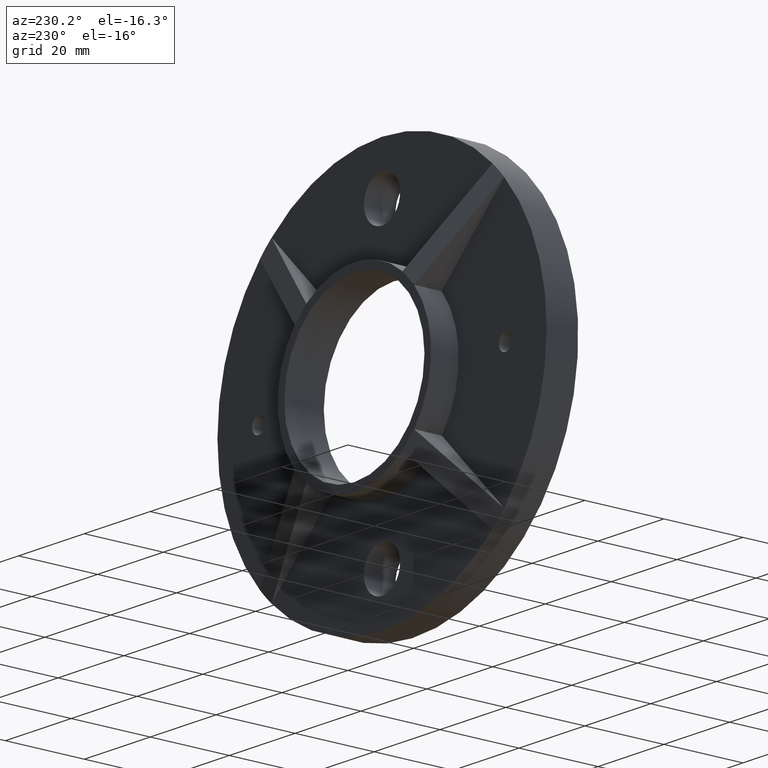
[diagram: clean part render]
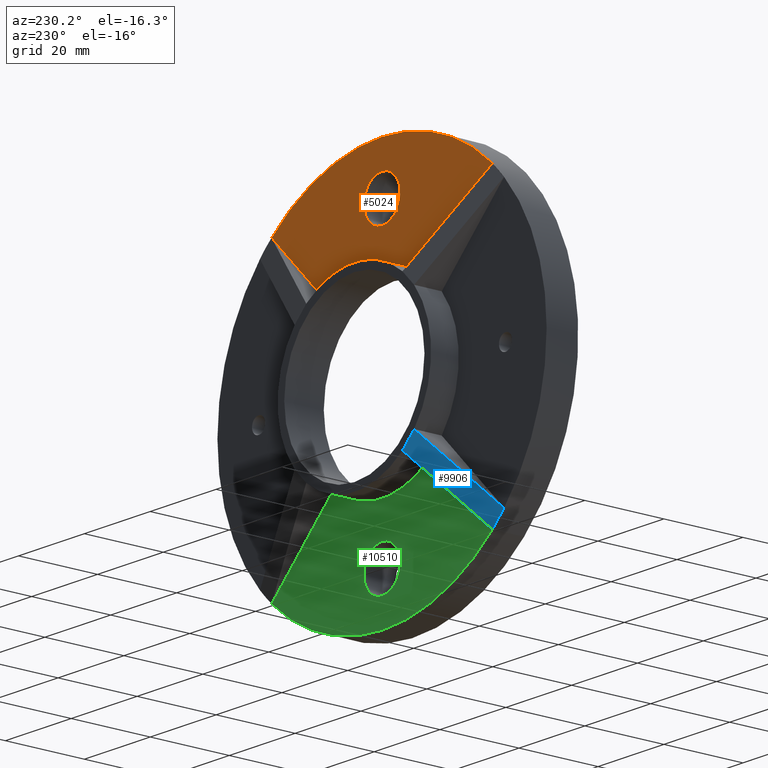
[diagram: same view with three faces highlighted in distinct colors, each labeled with its STEP entity id]
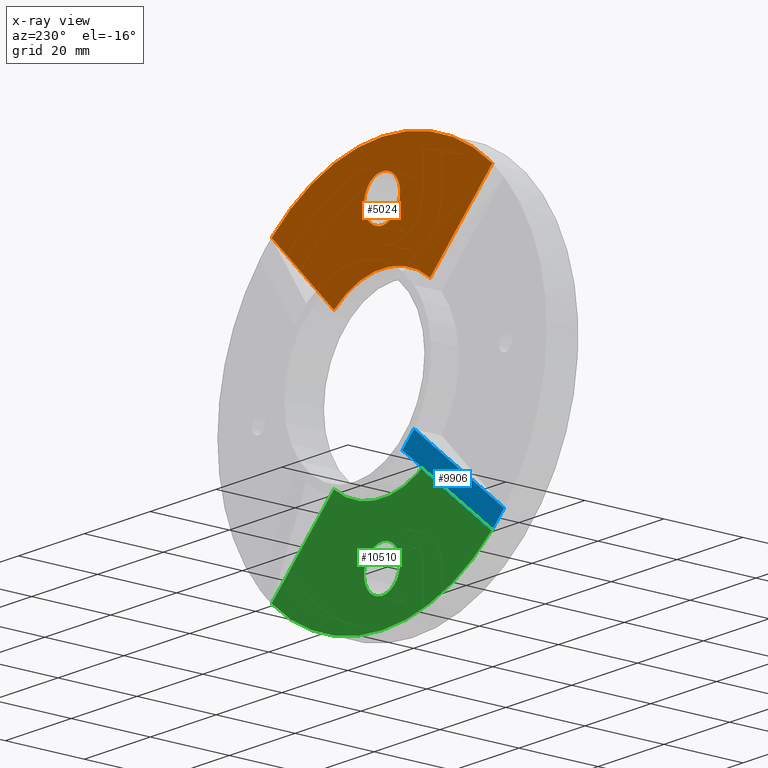
[diagram: x-ray of the same camera — body ghosted, the three highlighted faces saturated]
A machine part, auxiliary view with three faces highlighted in distinct colors.
The next image is the same camera in x-ray (body ghosted, the three faces saturated) — at least one of them is partly hidden behind the body in this view.
Their STEP definitions:

[orange] entity #5024 — the highlighted planar face has unit normal (0, 1, 0).
#35 = EDGE_CURVE ( 'NONE', #7252, #6260, #7600, .T. ) ;
#189 = AXIS2_PLACEMENT_3D ( 'NONE', #6867, #7690, #8492 ) ;
#587 = VERTEX_POINT ( 'NONE', #5414 ) ;
#957 = CARTESIAN_POINT ( 'NONE',  ( 0.000000000000000000, 8.000000000000000000, 0.000000000000000000 ) ) ;
#960 = AXIS2_PLACEMENT_3D ( 'NONE', #957, #9122, #7465 ) ;
#990 = CARTESIAN_POINT ( 'NONE',  ( 0.000000000000000000, 8.000000000000000000, 43.00000000000000000 ) ) ;
#1334 = DIRECTION ( 'NONE',  ( 0.000000000000000000, 1.000000000000000000, 0.000000000000000000 ) ) ;
#1381 = AXIS2_PLACEMENT_3D ( 'NONE', #6520, #6481, #6621 ) ;
#1552 = ORIENTED_EDGE ( 'NONE', *, *, #10160, .F. ) ;
#1573 = VERTEX_POINT ( 'NONE', #2029 ) ;
#1634 = CARTESIAN_POINT ( 'NONE',  ( 14.61270923058821936, 8.000000000000000000, 18.14824313652100329 ) ) ;
#1827 = CARTESIAN_POINT ( 'NONE',  ( -14.61270923058828153, 8.000000000000000000, 18.14824313652095711 ) ) ;
#1984 = VECTOR ( 'NONE', #3430, 999.9999999999998863 ) ;
#2029 = CARTESIAN_POINT ( 'NONE',  ( 33.54335027659739410, 8.000000000000000000, 37.07888418253026686 ) ) ;
#2284 = AXIS2_PLACEMENT_3D ( 'NONE', #3735, #1334, #6346 ) ;
#2556 = FACE_OUTER_BOUND ( 'NONE', #2758, .T. ) ;
#2758 = EDGE_LOOP ( 'NONE', ( #7058, #7849, #6327, #9336 ) ) ;
#3386 = EDGE_CURVE ( 'NONE', #587, #1573, #6957, .T. ) ;
#3430 = DIRECTION ( 'NONE',  ( 0.7071067811865486830, -0.000000000000000000, -0.7071067811865464625 ) ) ;
#3735 = CARTESIAN_POINT ( 'NONE',  ( 0.000000000000000000, 8.000000000000000000, 0.000000000000000000 ) ) ;
#4195 = EDGE_LOOP ( 'NONE', ( #1552 ) ) ;
#5024 = ADVANCED_FACE ( 'NONE', ( #9773, #2556 ), #7913, .T. ) ;
#5133 = VECTOR ( 'NONE', #7313, 1000.000000000000000 ) ;
#5414 = CARTESIAN_POINT ( 'NONE',  ( -33.54335027659750779, 8.000000000000000000, 37.07888418253013896 ) ) ;
#5904 = LINE ( 'NONE', #1634, #5133 ) ;
#6260 = VERTEX_POINT ( 'NONE', #7947 ) ;
#6327 = ORIENTED_EDGE ( 'NONE', *, *, #3386, .T. ) ;
#6346 = DIRECTION ( 'NONE',  ( 0.000000000000000000, -0.000000000000000000, 1.000000000000000000 ) ) ;
#6481 = DIRECTION ( 'NONE',  ( 0.000000000000000000, 1.000000000000000000, 0.000000000000000000 ) ) ;
#6520 = CARTESIAN_POINT ( 'NONE',  ( 0.000000000000000000, 8.000000000000000000, 37.50000000000000000 ) ) ;
#6621 = DIRECTION ( 'NONE',  ( 0.000000000000000000, 0.000000000000000000, 1.000000000000000000 ) ) ;
#6650 = EDGE_CURVE ( 'NONE', #6260, #1573, #5904, .T. ) ;
#6867 = CARTESIAN_POINT ( 'NONE',  ( 0.000000000000000000, 8.000000000000000000, 0.000000000000000000 ) ) ;
#6957 = CIRCLE ( 'NONE', #960, 50.00000000000000000 ) ;
#7058 = ORIENTED_EDGE ( 'NONE', *, *, #35, .F. ) ;
#7228 = VERTEX_POINT ( 'NONE', #990 ) ;
#7252 = VERTEX_POINT ( 'NONE', #1827 ) ;
#7313 = DIRECTION ( 'NONE',  ( 0.7071067811865464625, 0.000000000000000000, 0.7071067811865486830 ) ) ;
#7465 = DIRECTION ( 'NONE',  ( 0.000000000000000000, 0.000000000000000000, 1.000000000000000000 ) ) ;
#7600 = CIRCLE ( 'NONE', #189, 23.30000000000000071 ) ;
#7672 = CARTESIAN_POINT ( 'NONE',  ( -14.61270923058827265, 8.000000000000000000, 18.14824313652096421 ) ) ;
#7690 = DIRECTION ( 'NONE',  ( 0.000000000000000000, 1.000000000000000000, 0.000000000000000000 ) ) ;
#7849 = ORIENTED_EDGE ( 'NONE', *, *, #8785, .F. ) ;
#7913 = PLANE ( 'NONE',  #2284 ) ;
#7947 = CARTESIAN_POINT ( 'NONE',  ( 14.61270923058821936, 8.000000000000000000, 18.14824313652100329 ) ) ;
#8492 = DIRECTION ( 'NONE',  ( 0.000000000000000000, 0.000000000000000000, 1.000000000000000000 ) ) ;
#8785 = EDGE_CURVE ( 'NONE', #587, #7252, #9320, .T. ) ;
#9122 = DIRECTION ( 'NONE',  ( 0.000000000000000000, 1.000000000000000000, 0.000000000000000000 ) ) ;
#9320 = LINE ( 'NONE', #7672, #1984 ) ;
#9336 = ORIENTED_EDGE ( 'NONE', *, *, #6650, .F. ) ;
#9773 = FACE_BOUND ( 'NONE', #4195, .T. ) ;
#10160 = EDGE_CURVE ( 'NONE', #7228, #7228, #10470, .T. ) ;
#10470 = CIRCLE ( 'NONE', #1381, 5.499999999999998224 ) ;

[blue] entity #9906 — the highlighted planar face has unit normal (0.1789, -0.9675, 0.1789).
#330 = VERTEX_POINT ( 'NONE', #10463 ) ;
#1017 = CARTESIAN_POINT ( 'NONE',  ( -66.38047618355467705, 15.00000000000000000, 33.61952381644525900 ) ) ;
#1377 = LINE ( 'NONE', #7775, #9484 ) ;
#1783 = LINE ( 'NONE', #1963, #7956 ) ;
#1836 = ORIENTED_EDGE ( 'NONE', *, *, #5400, .F. ) ;
#1963 = CARTESIAN_POINT ( 'NONE',  ( -85.31111722956386245, 8.000000000000000000, 14.68888277043600077 ) ) ;
#2395 = VECTOR ( 'NONE', #3632, 1000.000000000000000 ) ;
#2537 = CARTESIAN_POINT ( 'NONE',  ( -14.61270923058821580, 15.00000000000000000, -18.14824313652101040 ) ) ;
#3436 = DIRECTION ( 'NONE',  ( 0.7071067811865489050, -0.000000000000000000, -0.7071067811865462405 ) ) ;
#3554 = DIRECTION ( 'NONE',  ( 0.000000000000000000, -0.1818042806142533552, -0.9833347362675306513 ) ) ;
#3586 = CARTESIAN_POINT ( 'NONE',  ( -66.38047618355467705, 15.00000000000000000, 33.61952381644525900 ) ) ;
#3632 = DIRECTION ( 'NONE',  ( 0.7071067811865489050, -0.000000000000000000, -0.7071067811865462405 ) ) ;
#4449 = DIRECTION ( 'NONE',  ( -0.6841087168591867274, -0.2529634895287306562, -0.6841087168591881706 ) ) ;
#5268 = PLANE ( 'NONE',  #9171 ) ;
#5400 = EDGE_CURVE ( 'NONE', #330, #5814, #1783, .T. ) ;
#5481 = ORIENTED_EDGE ( 'NONE', *, *, #8700, .T. ) ;
#5557 = EDGE_LOOP ( 'NONE', ( #7000, #5481, #1836, #7341 ) ) ;
#5761 = LINE ( 'NONE', #1017, #2395 ) ;
#5814 = VERTEX_POINT ( 'NONE', #7320 ) ;
#6230 = CARTESIAN_POINT ( 'NONE',  ( -14.61270923058822113, 15.00000000000000000, -18.14824313652099974 ) ) ;
#6442 = EDGE_CURVE ( 'NONE', #7749, #330, #1377, .T. ) ;
#6766 = DIRECTION ( 'NONE',  ( 0.1788721988383773775, -0.9674758255199186197, 0.1788721988383779604 ) ) ;
#6883 = VERTEX_POINT ( 'NONE', #6230 ) ;
#7000 = ORIENTED_EDGE ( 'NONE', *, *, #7946, .T. ) ;
#7320 = CARTESIAN_POINT ( 'NONE',  ( -33.54335027659739410, 8.000000000000000000, -37.07888418253026686 ) ) ;
#7341 = ORIENTED_EDGE ( 'NONE', *, *, #6442, .F. ) ;
#7431 = CARTESIAN_POINT ( 'NONE',  ( -18.14824313652096421, 14.99999999999999822, -14.61270923058826554 ) ) ;
#7749 = VERTEX_POINT ( 'NONE', #7431 ) ;
#7775 = CARTESIAN_POINT ( 'NONE',  ( -12.64995997623135793, 17.03310506118020839, -9.114426070298650373 ) ) ;
#7778 = VECTOR ( 'NONE', #9022, 1000.000000000000000 ) ;
#7946 = EDGE_CURVE ( 'NONE', #7749, #6883, #5761, .T. ) ;
#7956 = VECTOR ( 'NONE', #3436, 1000.000000000000000 ) ;
#8700 = EDGE_CURVE ( 'NONE', #6883, #5814, #9975, .T. ) ;
#9022 = DIRECTION ( 'NONE',  ( -0.6841087168591860612, -0.2529634895287306562, -0.6841087168591888368 ) ) ;
#9171 = AXIS2_PLACEMENT_3D ( 'NONE', #3586, #6766, #3554 ) ;
#9484 = VECTOR ( 'NONE', #4449, 1000.000000000000114 ) ;
#9706 = FACE_OUTER_BOUND ( 'NONE', #5557, .T. ) ;
#9906 = ADVANCED_FACE ( 'NONE', ( #9706 ), #5268, .F. ) ;
#9975 = LINE ( 'NONE', #2537, #7778 ) ;
#10463 = CARTESIAN_POINT ( 'NONE',  ( -37.07888418253016738, 7.999999999999996447, -33.54335027659750779 ) ) ;

[green] entity #10510 — the highlighted planar face has unit normal (0, 1, 0).
#84 = LINE ( 'NONE', #1538, #5750 ) ;
#535 = DIRECTION ( 'NONE',  ( 0.000000000000000000, 0.000000000000000000, 1.000000000000000000 ) ) ;
#790 = CARTESIAN_POINT ( 'NONE',  ( 14.61270923058827087, 8.000000000000000000, -18.14824313652096777 ) ) ;
#1487 = VECTOR ( 'NONE', #5737, 1000.000000000000114 ) ;
#1501 = CARTESIAN_POINT ( 'NONE',  ( 0.000000000000000000, 8.000000000000000000, 0.000000000000000000 ) ) ;
#1538 = CARTESIAN_POINT ( 'NONE',  ( -14.61270923058822113, 8.000000000000000000, -18.14824313652099974 ) ) ;
#1600 = CIRCLE ( 'NONE', #7013, 5.499999999999998224 ) ;
#1792 = CARTESIAN_POINT ( 'NONE',  ( 0.000000000000000000, 8.000000000000000000, 0.000000000000000000 ) ) ;
#2266 = CARTESIAN_POINT ( 'NONE',  ( 0.000000000000000000, 8.000000000000000000, -37.50000000000000000 ) ) ;
#2441 = EDGE_CURVE ( 'NONE', #8789, #8789, #1600, .T. ) ;
#2856 = ORIENTED_EDGE ( 'NONE', *, *, #5732, .T. ) ;
#3247 = ORIENTED_EDGE ( 'NONE', *, *, #8529, .F. ) ;
#3372 = AXIS2_PLACEMENT_3D ( 'NONE', #1792, #9170, #4235 ) ;
#3799 = DIRECTION ( 'NONE',  ( 0.000000000000000000, 0.000000000000000000, -1.000000000000000000 ) ) ;
#3861 = DIRECTION ( 'NONE',  ( 0.000000000000000000, 1.000000000000000000, 0.000000000000000000 ) ) ;
#3874 = ORIENTED_EDGE ( 'NONE', *, *, #8581, .F. ) ;
#4015 = DIRECTION ( 'NONE',  ( -0.7071067811865465735, 0.000000000000000000, -0.7071067811865484609 ) ) ;
#4235 = DIRECTION ( 'NONE',  ( 0.000000000000000000, 0.000000000000000000, 1.000000000000000000 ) ) ;
#4277 = FACE_BOUND ( 'NONE', #9729, .T. ) ;
#4601 = VERTEX_POINT ( 'NONE', #6887 ) ;
#5018 = CIRCLE ( 'NONE', #7239, 50.00000000000000000 ) ;
#5214 = CARTESIAN_POINT ( 'NONE',  ( 33.54335027659750779, 7.999999999999996447, -37.07888418253015317 ) ) ;
#5236 = EDGE_CURVE ( 'NONE', #6235, #4601, #8741, .T. ) ;
#5353 = ORIENTED_EDGE ( 'NONE', *, *, #2441, .F. ) ;
#5431 = PLANE ( 'NONE',  #6758 ) ;
#5732 = EDGE_CURVE ( 'NONE', #8781, #5814, #5018, .T. ) ;
#5737 = DIRECTION ( 'NONE',  ( -0.7071067811865483499, -0.000000000000000000, 0.7071067811865466846 ) ) ;
#5750 = VECTOR ( 'NONE', #4015, 1000.000000000000114 ) ;
#5814 = VERTEX_POINT ( 'NONE', #7320 ) ;
#6235 = VERTEX_POINT ( 'NONE', #7123 ) ;
#6758 = AXIS2_PLACEMENT_3D ( 'NONE', #8766, #10415, #10270 ) ;
#6887 = CARTESIAN_POINT ( 'NONE',  ( -14.61270923058822113, 8.000000000000000000, -18.14824313652099974 ) ) ;
#7013 = AXIS2_PLACEMENT_3D ( 'NONE', #2266, #9604, #3799 ) ;
#7123 = CARTESIAN_POINT ( 'NONE',  ( 14.61270923058827087, 8.000000000000000000, -18.14824313652096421 ) ) ;
#7239 = AXIS2_PLACEMENT_3D ( 'NONE', #1501, #3861, #535 ) ;
#7320 = CARTESIAN_POINT ( 'NONE',  ( -33.54335027659739410, 8.000000000000000000, -37.07888418253026686 ) ) ;
#8173 = LINE ( 'NONE', #790, #1487 ) ;
#8350 = ORIENTED_EDGE ( 'NONE', *, *, #5236, .F. ) ;
#8401 = FACE_OUTER_BOUND ( 'NONE', #9509, .T. ) ;
#8529 = EDGE_CURVE ( 'NONE', #8781, #6235, #8173, .T. ) ;
#8581 = EDGE_CURVE ( 'NONE', #4601, #5814, #84, .T. ) ;
#8741 = CIRCLE ( 'NONE', #3372, 23.30000000000000071 ) ;
#8766 = CARTESIAN_POINT ( 'NONE',  ( 0.000000000000000000, 8.000000000000000000, 0.000000000000000000 ) ) ;
#8781 = VERTEX_POINT ( 'NONE', #5214 ) ;
#8789 = VERTEX_POINT ( 'NONE', #10037 ) ;
#9170 = DIRECTION ( 'NONE',  ( 0.000000000000000000, 1.000000000000000000, 0.000000000000000000 ) ) ;
#9509 = EDGE_LOOP ( 'NONE', ( #8350, #3247, #2856, #3874 ) ) ;
#9604 = DIRECTION ( 'NONE',  ( 0.000000000000000000, 1.000000000000000000, -0.000000000000000000 ) ) ;
#9729 = EDGE_LOOP ( 'NONE', ( #5353 ) ) ;
#10037 = CARTESIAN_POINT ( 'NONE',  ( 0.000000000000000000, 8.000000000000000000, -43.00000000000000000 ) ) ;
#10270 = DIRECTION ( 'NONE',  ( 0.000000000000000000, -0.000000000000000000, 1.000000000000000000 ) ) ;
#10415 = DIRECTION ( 'NONE',  ( 0.000000000000000000, 1.000000000000000000, 0.000000000000000000 ) ) ;
#10510 = ADVANCED_FACE ( 'NONE', ( #4277, #8401 ), #5431, .T. ) ;